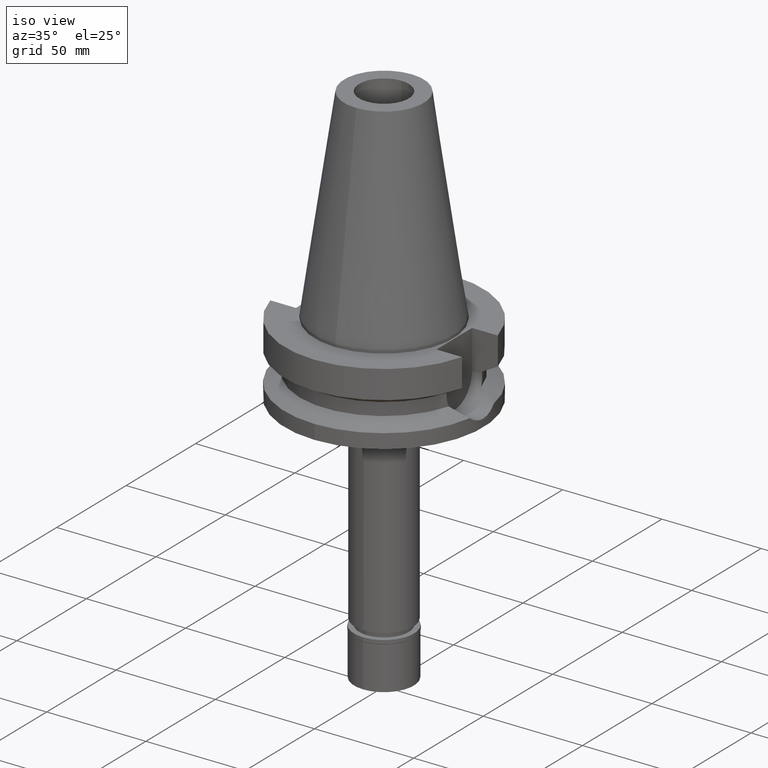
[diagram: clean part render]
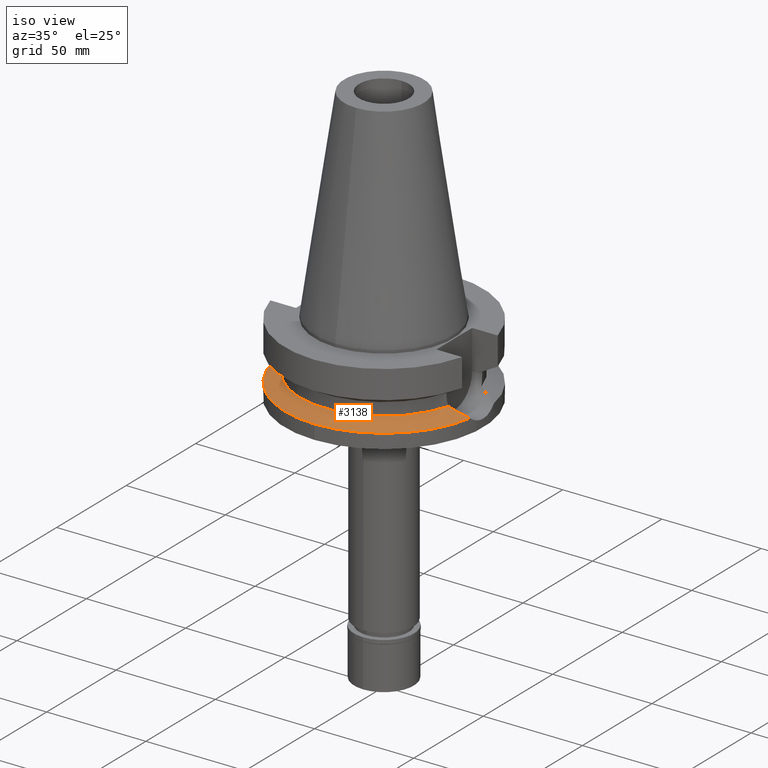
[diagram: same view with one face highlighted and labeled with its STEP entity id]
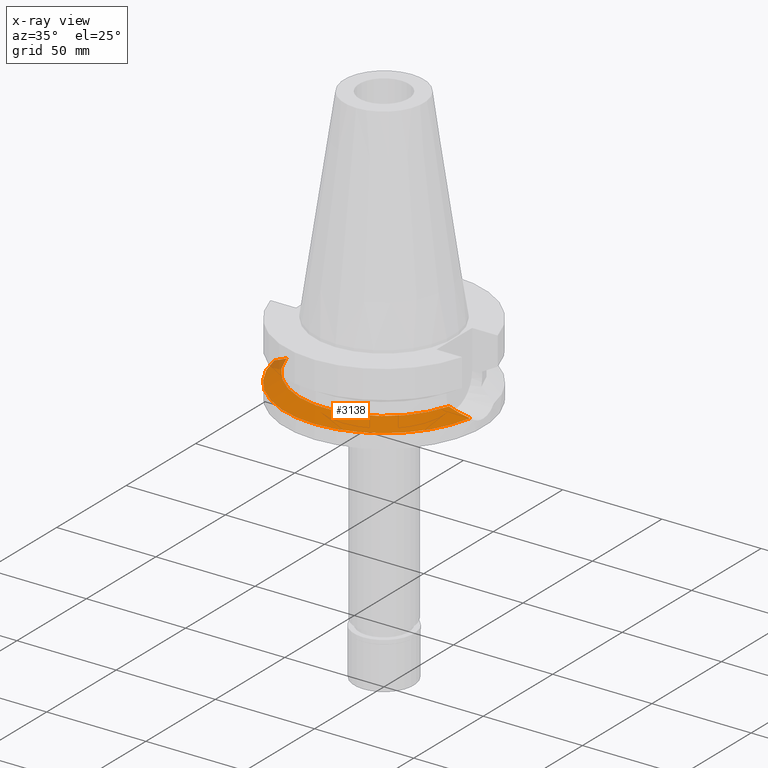
[diagram: x-ray of the same camera — body ghosted, the highlighted face saturated]
A machine part, iso view. The second image highlights one B-rep face of the part: STEP entity #3138.
The next image is the same camera in x-ray: the body ghosted, the highlighted face saturated — about 3% of this face is hidden behind the body in this view.
In plain terms, the highlighted conical surface has half-angle 60 deg.
Its self-contained STEP definition (entity closure, byte-faithful):
#61 = CARTESIAN_POINT ( 'NONE',  ( 44.62945489421924350, -10.63808977351516916, -28.35874894731125906 ) ) ;
#74 = CARTESIAN_POINT ( 'NONE',  ( -45.39860948360058757, -10.35855191670917463, -28.75416253222679330 ) ) ;
#111 = CARTESIAN_POINT ( 'NONE',  ( 0.0000000000000000000, -50.00000000000000000, -30.73730776426999967 ) ) ;
#137 = CARTESIAN_POINT ( 'NONE',  ( -45.34035800498693902, -10.38046714722860386, -28.72419678615435146 ) ) ;
#142 = CARTESIAN_POINT ( 'NONE',  ( -40.85052569294000335, -11.72538061688000077, -26.40718074535000426 ) ) ;
#150 = CARTESIAN_POINT ( 'NONE',  ( -45.36367175991551193, -10.37170561142917258, -28.73618994357061140 ) ) ;
#194 = VERTEX_POINT ( 'NONE', #2281 ) ;
#279 = CIRCLE ( 'NONE', #2210, 50.00000000000000000 ) ;
#297 = CARTESIAN_POINT ( 'NONE',  ( 45.47389086641073419, -10.32976744119481616, -28.79320660679450938 ) ) ;
#314 = EDGE_CURVE ( 'NONE', #1297, #3037, #2534, .T. ) ;
#335 = CARTESIAN_POINT ( 'NONE',  ( 42.55080715488936960, -11.29926893896134033, -27.28712364800307100 ) ) ;
#358 = ORIENTED_EDGE ( 'NONE', *, *, #2575, .F. ) ;
#365 = CARTESIAN_POINT ( 'NONE',  ( 45.45400252495457494, -10.33732747648480021, -28.78297733056718144 ) ) ;
#431 = CARTESIAN_POINT ( 'NONE',  ( 0.0000000000000000000, 0.0000000000000000000, -26.40718074535000426 ) ) ;
#544 = CARTESIAN_POINT ( 'NONE',  ( 45.41173622918999087, -10.35334433944704102, -28.76123795935193783 ) ) ;
#555 = CARTESIAN_POINT ( 'NONE',  ( -48.08213161329754115, -9.200111455679525818, -30.13267785218421224 ) ) ;
#584 = VERTEX_POINT ( 'NONE', #111 ) ;
#614 = CIRCLE ( 'NONE', #677, 42.50000000000000000 ) ;
#677 = AXIS2_PLACEMENT_3D ( 'NONE', #431, #1317, #2378 ) ;
#720 = CONICAL_SURFACE ( 'NONE', #2038, 46.25000000000000000, 1.047197551196400456 ) ;
#813 = CARTESIAN_POINT ( 'NONE',  ( 44.89609366871237484, -10.54419803809643952, -28.49598082795319698 ) ) ;
#842 = CARTESIAN_POINT ( 'NONE',  ( 43.71220588853897482, -10.94525081401382671, -27.88630469358338715 ) ) ;
#1018 = EDGE_CURVE ( 'NONE', #584, #1297, #279, .T. ) ;
#1054 = CARTESIAN_POINT ( 'NONE',  ( -45.64156102271540760, -10.26592310347208858, -28.87912990146282155 ) ) ;
#1057 = CARTESIAN_POINT ( 'NONE',  ( 45.19887342083264059, -10.43319006672411930, -28.65174748160162110 ) ) ;
#1124 = CARTESIAN_POINT ( 'NONE',  ( -42.52930560026207019, -11.33552018026002806, -27.27670801258030764 ) ) ;
#1151 = DIRECTION ( 'NONE',  ( 0.0000000000000000000, 0.0000000000000000000, -1.000000000000000000 ) ) ;
#1243 = ORIENTED_EDGE ( 'NONE', *, *, #314, .F. ) ;
#1276 = CARTESIAN_POINT ( 'NONE',  ( 48.17428534677765839, -9.180541941216898039, -30.17999108216438486 ) ) ;
#1297 = VERTEX_POINT ( 'NONE', #1438 ) ;
#1317 = DIRECTION ( 'NONE',  ( 0.0000000000000000000, 0.0000000000000000000, 1.000000000000000000 ) ) ;
#1358 = CARTESIAN_POINT ( 'NONE',  ( -44.01813414973228333, -10.87558455852532902, -28.04399674832608369 ) ) ;
#1418 = DIRECTION ( 'NONE',  ( 0.0000000000000000000, -1.000000000000000000, 0.0000000000000000000 ) ) ;
#1438 = CARTESIAN_POINT ( 'NONE',  ( -49.26250064874000145, -8.556052234130000045, -30.73730776426999967 ) ) ;
#1515 = CARTESIAN_POINT ( 'NONE',  ( 46.91882533971048019, -9.778604880902443952, -29.53637774514174907 ) ) ;
#1527 = CARTESIAN_POINT ( 'NONE',  ( -47.09575928645018195, -9.660421111464199129, -29.62648376376892045 ) ) ;
#1541 = CARTESIAN_POINT ( 'NONE',  ( -45.47990047791134316, -10.32778057283759310, -28.79597850436861961 ) ) ;
#1544 = CARTESIAN_POINT ( 'NONE',  ( 40.85052569294000335, -11.72538061688000077, -26.40718074535000426 ) ) ;
#1578 = CARTESIAN_POINT ( 'NONE',  ( 49.26250064874000145, -8.556052234130000045, -30.73730776426999967 ) ) ;
#1619 = VERTEX_POINT ( 'NONE', #2593 ) ;
#1679 = EDGE_CURVE ( 'NONE', #194, #584, #2222, .T. ) ;
#1718 = AXIS2_PLACEMENT_3D ( 'NONE', #2829, #1151, #2335 ) ;
#1724 = DIRECTION ( 'NONE',  ( 0.0000000000000000000, 0.0000000000000000000, -1.000000000000000000 ) ) ;
#1730 = ORIENTED_EDGE ( 'NONE', *, *, #1679, .F. ) ;
#1783 = CARTESIAN_POINT ( 'NONE',  ( -45.96119633705336582, -10.14097118003422082, -29.04350847680117198 ) ) ;
#1823 = ORIENTED_EDGE ( 'NONE', *, *, #1018, .F. ) ;
#1843 = CARTESIAN_POINT ( 'NONE',  ( -45.32715881941014402, -10.38541753104684062, -28.71740671529603262 ) ) ;
#1844 = DIRECTION ( 'NONE',  ( 0.0000000000000000000, 0.0000000000000000000, -1.000000000000000000 ) ) ;
#2038 = AXIS2_PLACEMENT_3D ( 'NONE', #3137, #1724, #1418 ) ;
#2071 = CARTESIAN_POINT ( 'NONE',  ( -49.26250064874000145, -8.556052234130000045, -30.73730776426999967 ) ) ;
#2083 = CARTESIAN_POINT ( 'NONE',  ( -40.85052569294000335, -11.72538061688000077, -26.40718074535000426 ) ) ;
#2090 = B_SPLINE_CURVE_WITH_KNOTS ( 'NONE', 3,
 ( #1544, #2509, #335, #842, #2246, #61, #813, #1057, #2720, #544, #365, #297, #1515, #1276, #1578 ),
 .UNSPECIFIED., .F., .F.,
 ( 4, 2, 2, 1, 1, 1, 2, 2, 4 ),
 ( 0.0000000000000000000, 0.2500000000000281442, 0.3750000000000413003, 0.4375000000000480727, 0.4687500000000516809, 0.4843750000000536793, 0.4921875000000544009, 0.5000000000000550671, 1.000000000000000000 ),
 .UNSPECIFIED. ) ;
#2210 = AXIS2_PLACEMENT_3D ( 'NONE', #2585, #1844, #2633 ) ;
#2222 = CIRCLE ( 'NONE', #1718, 50.00000000000000000 ) ;
#2230 = ORIENTED_EDGE ( 'NONE', *, *, #2855, .F. ) ;
#2246 = CARTESIAN_POINT ( 'NONE',  ( 44.08669298166524442, -10.82393521993035712, -28.07928481256670850 ) ) ;
#2260 = CARTESIAN_POINT ( 'NONE',  ( -46.22885099173721102, -10.03182467558059621, -29.18109940407602920 ) ) ;
#2278 = CARTESIAN_POINT ( 'NONE',  ( -46.75573567191602820, -9.811003945651039615, -29.45186469519780559 ) ) ;
#2281 = CARTESIAN_POINT ( 'NONE',  ( 49.26250064874000145, -8.556052234130000045, -30.73730776426999967 ) ) ;
#2335 = DIRECTION ( 'NONE',  ( 0.9852500129747439050, -0.1711210446826074982, 0.0000000000000000000 ) ) ;
#2378 = DIRECTION ( 'NONE',  ( 0.0000000000000000000, -1.000000000000000000, 0.0000000000000000000 ) ) ;
#2380 = EDGE_LOOP ( 'NONE', ( #1823, #1730, #2230, #358, #1243 ) ) ;
#2509 = CARTESIAN_POINT ( 'NONE',  ( 41.72595806009523045, -11.52208032515969904, -26.86061261604604056 ) ) ;
#2534 = B_SPLINE_CURVE_WITH_KNOTS ( 'NONE', 3,
 ( #2071, #2738, #555, #1527, #2278, #2260, #1783, #1054, #1541, #74, #150, #137, #1843, #1358, #1124, #2083 ),
 .UNSPECIFIED., .F., .F.,
 ( 4, 2, 2, 1, 1, 1, 1, 2, 2, 4 ),
 ( 0.0000000000000000000, 0.2500000000000065503, 0.3750000000000098255, 0.4375000000000114353, 0.4687500000000123790, 0.4843750000000121569, 0.4921875000000118239, 0.4960937500000117129, 0.5000000000000115463, 1.000000000000000000 ),
 .UNSPECIFIED. ) ;
#2575 = EDGE_CURVE ( 'NONE', #3037, #1619, #614, .T. ) ;
#2585 = CARTESIAN_POINT ( 'NONE',  ( 0.0000000000000000000, 0.0000000000000000000, -30.73730776426999967 ) ) ;
#2593 = CARTESIAN_POINT ( 'NONE',  ( 40.85052569294000335, -11.72538061688000077, -26.40718074535000426 ) ) ;
#2633 = DIRECTION ( 'NONE',  ( 0.0000000000000000000, -1.000000000000000000, 0.0000000000000000000 ) ) ;
#2720 = CARTESIAN_POINT ( 'NONE',  ( 45.34818859236233379, -10.37734687527181165, -28.72855217341771805 ) ) ;
#2738 = CARTESIAN_POINT ( 'NONE',  ( -48.69478180885555929, -8.881846745000213872, -30.44655723021669047 ) ) ;
#2829 = CARTESIAN_POINT ( 'NONE',  ( 0.0000000000000000000, 0.0000000000000000000, -30.73730776426999967 ) ) ;
#2855 = EDGE_CURVE ( 'NONE', #1619, #194, #2090, .T. ) ;
#2938 = FACE_OUTER_BOUND ( 'NONE', #2380, .T. ) ;
#3037 = VERTEX_POINT ( 'NONE', #142 ) ;
#3137 = CARTESIAN_POINT ( 'NONE',  ( 0.0000000000000000000, 0.0000000000000000000, -28.57224425480999841 ) ) ;
#3138 = ADVANCED_FACE ( 'NONE', ( #2938 ), #720, .T. ) ;